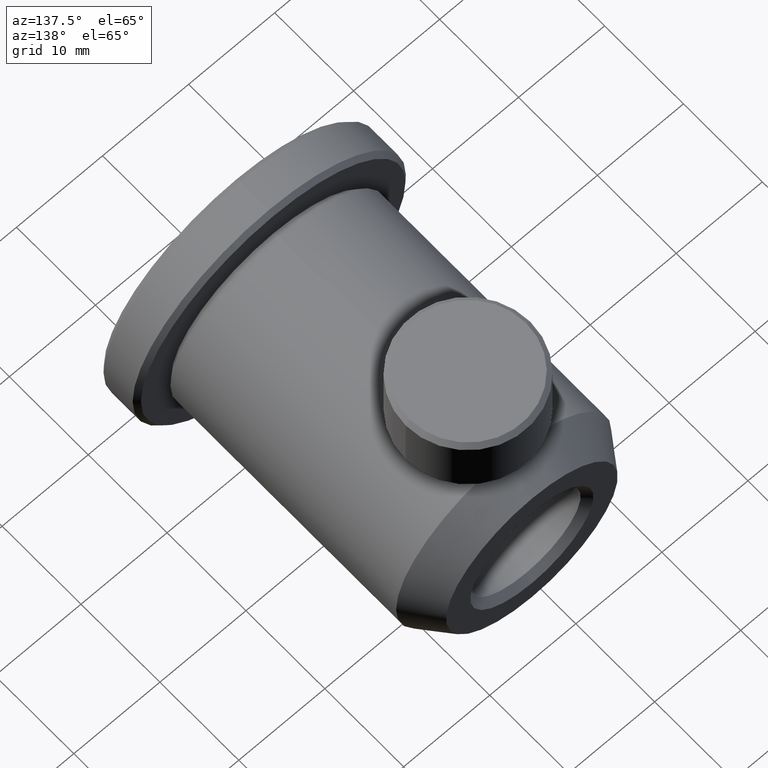
[diagram: clean part render]
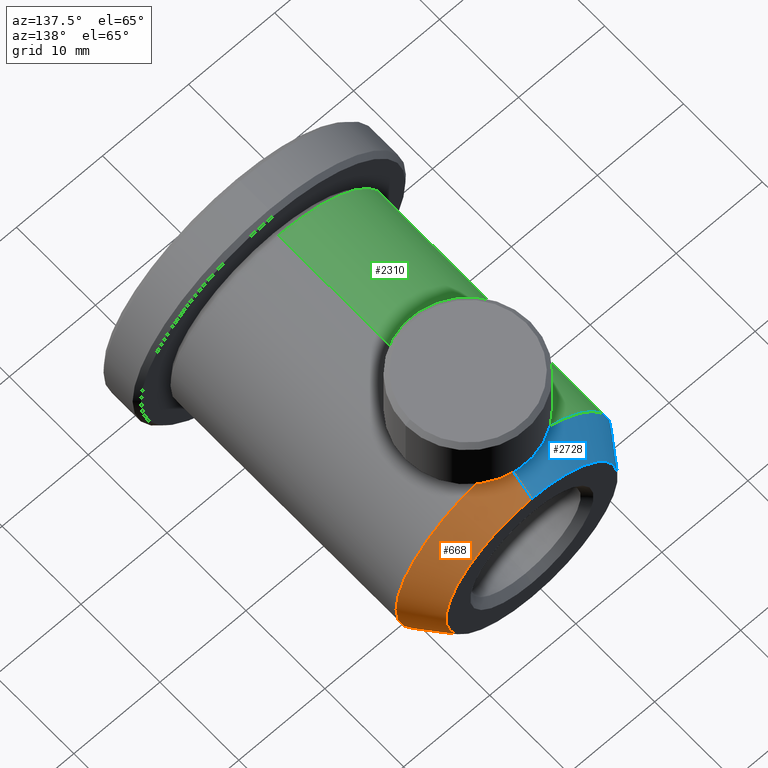
[diagram: same view with three faces highlighted in distinct colors, each labeled with its STEP entity id]
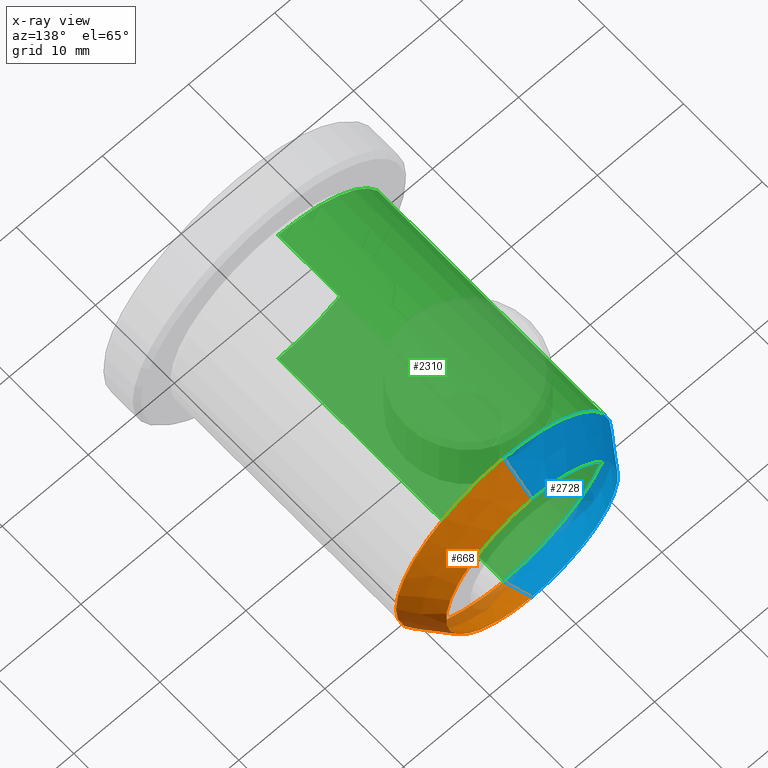
[diagram: x-ray of the same camera — body ghosted, the three highlighted faces saturated]
A machine part, auxiliary view with three faces highlighted in distinct colors.
The next image is the same camera in x-ray (body ghosted, the three faces saturated) — at least one of them is partly hidden behind the body in this view.
Their STEP definitions:

[orange] entity #668 — the highlighted conical surface has half-angle 35.304 deg.
#107 = EDGE_CURVE ( 'NONE', #1892, #2600, #1264, .T. ) ;
#384 = EDGE_CURVE ( 'NONE', #1728, #1892, #3466, .T. ) ;
#419 = CARTESIAN_POINT ( 'NONE',  ( -16.77690416192938400, 14.37733255234846500, -0.6606246024972641800 ) ) ;
#465 = DIRECTION ( 'NONE',  ( 7.077332711792863800E-017, -0.8161018684870594600, 0.5779080724924426900 ) ) ;
#481 = DIRECTION ( 'NONE',  ( 0.0000000000000000000, 0.0000000000000000000, 1.000000000000000000 ) ) ;
#499 = VERTEX_POINT ( 'NONE', #2483 ) ;
#668 = ADVANCED_FACE ( 'NONE', ( #1969 ), #1138, .T. ) ;
#898 = EDGE_LOOP ( 'NONE', ( #2555, #1310, #2309, #2918 ) ) ;
#1138 = CONICAL_SURFACE ( 'NONE', #3265, 12.50662460249726500, 0.6161630405470184300 ) ;
#1190 = LINE ( 'NONE', #2158, #2479 ) ;
#1205 = DIRECTION ( 'NONE',  ( 0.0000000000000000000, -1.000000000000000000, 0.0000000000000000000 ) ) ;
#1264 = LINE ( 'NONE', #2657, #3279 ) ;
#1310 = ORIENTED_EDGE ( 'NONE', *, *, #2709, .T. ) ;
#1313 = CARTESIAN_POINT ( 'NONE',  ( -16.77690416192938400, 17.95116843547334500, 11.84600000000000000 ) ) ;
#1522 = DIRECTION ( 'NONE',  ( -0.0000000000000000000, 1.000000000000000000, -0.0000000000000000000 ) ) ;
#1728 = VERTEX_POINT ( 'NONE', #2485 ) ;
#1892 = VERTEX_POINT ( 'NONE', #3002 ) ;
#1969 = FACE_OUTER_BOUND ( 'NONE', #898, .T. ) ;
#2157 = DIRECTION ( 'NONE',  ( -0.0000000000000000000, 1.000000000000000000, -0.0000000000000000000 ) ) ;
#2158 = CARTESIAN_POINT ( 'NONE',  ( -16.77690416192938400, 14.37733255234846500, 24.35262460249726500 ) ) ;
#2180 = EDGE_CURVE ( 'NONE', #499, #2600, #3513, .T. ) ;
#2309 = ORIENTED_EDGE ( 'NONE', *, *, #2180, .T. ) ;
#2479 = VECTOR ( 'NONE', #465, 1000.000000000000200 ) ;
#2481 = AXIS2_PLACEMENT_3D ( 'NONE', #2656, #1522, #3192 ) ;
#2483 = CARTESIAN_POINT ( 'NONE',  ( -16.77690416192938400, 14.37733255234846500, 24.35262460249726500 ) ) ;
#2485 = CARTESIAN_POINT ( 'NONE',  ( -16.77690416192938400, 17.95116843547334500, 21.82187606929037600 ) ) ;
#2555 = ORIENTED_EDGE ( 'NONE', *, *, #384, .F. ) ;
#2600 = VERTEX_POINT ( 'NONE', #419 ) ;
#2611 = CARTESIAN_POINT ( 'NONE',  ( -16.77690416192938400, 14.37733255234846500, 11.84600000000000000 ) ) ;
#2656 = CARTESIAN_POINT ( 'NONE',  ( -16.77690416192938400, 14.37733255234846500, 11.84600000000000000 ) ) ;
#2657 = CARTESIAN_POINT ( 'NONE',  ( -16.77690416192938400, 14.37733255234846500, -0.6606246024972641800 ) ) ;
#2709 = EDGE_CURVE ( 'NONE', #1728, #499, #1190, .T. ) ;
#2918 = ORIENTED_EDGE ( 'NONE', *, *, #107, .F. ) ;
#3002 = CARTESIAN_POINT ( 'NONE',  ( -16.77690416192938400, 17.95116843547334500, 1.870123930709623600 ) ) ;
#3174 = AXIS2_PLACEMENT_3D ( 'NONE', #1313, #2157, #481 ) ;
#3192 = DIRECTION ( 'NONE',  ( 0.0000000000000000000, 0.0000000000000000000, 1.000000000000000000 ) ) ;
#3265 = AXIS2_PLACEMENT_3D ( 'NONE', #2611, #1205, #3434 ) ;
#3279 = VECTOR ( 'NONE', #3463, 1000.000000000000200 ) ;
#3434 = DIRECTION ( 'NONE',  ( 0.0000000000000000000, 0.0000000000000000000, -1.000000000000000000 ) ) ;
#3463 = DIRECTION ( 'NONE',  ( 0.0000000000000000000, -0.8161018684870594600, -0.5779080724924426900 ) ) ;
#3466 = CIRCLE ( 'NONE', #3174, 9.975876069290375600 ) ;
#3513 = CIRCLE ( 'NONE', #2481, 12.50662460249726300 ) ;

[blue] entity #2728 — the highlighted conical surface has half-angle 35.304 deg.
#53 = CIRCLE ( 'NONE', #1052, 12.50662460249726300 ) ;
#107 = EDGE_CURVE ( 'NONE', #1892, #2600, #1264, .T. ) ;
#419 = CARTESIAN_POINT ( 'NONE',  ( -16.77690416192938400, 14.37733255234846500, -0.6606246024972641800 ) ) ;
#465 = DIRECTION ( 'NONE',  ( 7.077332711792863800E-017, -0.8161018684870594600, 0.5779080724924426900 ) ) ;
#499 = VERTEX_POINT ( 'NONE', #2483 ) ;
#509 = FACE_OUTER_BOUND ( 'NONE', #570, .T. ) ;
#570 = EDGE_LOOP ( 'NONE', ( #3136, #2110, #2712, #1275 ) ) ;
#846 = CIRCLE ( 'NONE', #3486, 9.975876069290375600 ) ;
#998 = DIRECTION ( 'NONE',  ( -0.0000000000000000000, 1.000000000000000000, -0.0000000000000000000 ) ) ;
#1052 = AXIS2_PLACEMENT_3D ( 'NONE', #3238, #998, #2947 ) ;
#1131 = DIRECTION ( 'NONE',  ( 0.0000000000000000000, 0.0000000000000000000, 1.000000000000000000 ) ) ;
#1190 = LINE ( 'NONE', #2158, #2479 ) ;
#1264 = LINE ( 'NONE', #2657, #3279 ) ;
#1275 = ORIENTED_EDGE ( 'NONE', *, *, #3235, .T. ) ;
#1481 = CARTESIAN_POINT ( 'NONE',  ( -16.77690416192938400, 17.95116843547334500, 11.84600000000000000 ) ) ;
#1577 = DIRECTION ( 'NONE',  ( 0.0000000000000000000, -1.000000000000000000, 0.0000000000000000000 ) ) ;
#1728 = VERTEX_POINT ( 'NONE', #2485 ) ;
#1788 = EDGE_CURVE ( 'NONE', #1892, #1728, #846, .T. ) ;
#1837 = AXIS2_PLACEMENT_3D ( 'NONE', #2954, #1577, #1881 ) ;
#1881 = DIRECTION ( 'NONE',  ( 0.0000000000000000000, 0.0000000000000000000, -1.000000000000000000 ) ) ;
#1892 = VERTEX_POINT ( 'NONE', #3002 ) ;
#2110 = ORIENTED_EDGE ( 'NONE', *, *, #1788, .F. ) ;
#2158 = CARTESIAN_POINT ( 'NONE',  ( -16.77690416192938400, 14.37733255234846500, 24.35262460249726500 ) ) ;
#2302 = DIRECTION ( 'NONE',  ( -0.0000000000000000000, 1.000000000000000000, -0.0000000000000000000 ) ) ;
#2479 = VECTOR ( 'NONE', #465, 1000.000000000000200 ) ;
#2483 = CARTESIAN_POINT ( 'NONE',  ( -16.77690416192938400, 14.37733255234846500, 24.35262460249726500 ) ) ;
#2485 = CARTESIAN_POINT ( 'NONE',  ( -16.77690416192938400, 17.95116843547334500, 21.82187606929037600 ) ) ;
#2600 = VERTEX_POINT ( 'NONE', #419 ) ;
#2657 = CARTESIAN_POINT ( 'NONE',  ( -16.77690416192938400, 14.37733255234846500, -0.6606246024972641800 ) ) ;
#2709 = EDGE_CURVE ( 'NONE', #1728, #499, #1190, .T. ) ;
#2712 = ORIENTED_EDGE ( 'NONE', *, *, #107, .T. ) ;
#2728 = ADVANCED_FACE ( 'NONE', ( #509 ), #3215, .T. ) ;
#2947 = DIRECTION ( 'NONE',  ( 0.0000000000000000000, 0.0000000000000000000, 1.000000000000000000 ) ) ;
#2954 = CARTESIAN_POINT ( 'NONE',  ( -16.77690416192938400, 14.37733255234846500, 11.84600000000000000 ) ) ;
#3002 = CARTESIAN_POINT ( 'NONE',  ( -16.77690416192938400, 17.95116843547334500, 1.870123930709623600 ) ) ;
#3136 = ORIENTED_EDGE ( 'NONE', *, *, #2709, .F. ) ;
#3215 = CONICAL_SURFACE ( 'NONE', #1837, 12.50662460249726500, 0.6161630405470184300 ) ;
#3235 = EDGE_CURVE ( 'NONE', #2600, #499, #53, .T. ) ;
#3238 = CARTESIAN_POINT ( 'NONE',  ( -16.77690416192938400, 14.37733255234846500, 11.84600000000000000 ) ) ;
#3279 = VECTOR ( 'NONE', #3463, 1000.000000000000200 ) ;
#3463 = DIRECTION ( 'NONE',  ( 0.0000000000000000000, -0.8161018684870594600, -0.5779080724924426900 ) ) ;
#3486 = AXIS2_PLACEMENT_3D ( 'NONE', #1481, #2302, #1131 ) ;

[green] entity #2310 — the highlighted cylindrical surface (partial cylindrical patch) has radius 12.5066 mm, axis along (-0, 1, -0).
#24 = CARTESIAN_POINT ( 'NONE',  ( -19.37900808545461500, 11.35685776725908800, 24.07943613021266300 ) ) ;
#31 = CARTESIAN_POINT ( 'NONE',  ( -16.77690416192938400, -14.21383156452665000, 11.84600000000000000 ) ) ;
#51 = VECTOR ( 'NONE', #167, 1000.000000000000000 ) ;
#53 = CIRCLE ( 'NONE', #1052, 12.50662460249726300 ) ;
#81 = VERTEX_POINT ( 'NONE', #3198 ) ;
#167 = DIRECTION ( 'NONE',  ( -0.0000000000000000000, 1.000000000000000000, -0.0000000000000000000 ) ) ;
#266 = CARTESIAN_POINT ( 'NONE',  ( -17.55854165358713100, 6.948081866018425100, 24.32967568799593400 ) ) ;
#279 = CARTESIAN_POINT ( 'NONE',  ( -19.62271400234653400, 8.881769656622104500, 24.02479129204621000 ) ) ;
#302 = DIRECTION ( 'NONE',  ( 0.0000000000000000000, 0.0000000000000000000, 1.000000000000000000 ) ) ;
#340 = CARTESIAN_POINT ( 'NONE',  ( -19.68040356499901800, 10.63092740669026000, 24.01098696126851800 ) ) ;
#415 = AXIS2_PLACEMENT_3D ( 'NONE', #31, #1983, #302 ) ;
#419 = CARTESIAN_POINT ( 'NONE',  ( -16.77690416192938400, 14.37733255234846500, -0.6606246024972641800 ) ) ;
#499 = VERTEX_POINT ( 'NONE', #2483 ) ;
#528 = CARTESIAN_POINT ( 'NONE',  ( -19.68090497296532200, 9.073155061120720800, 24.01086710568907600 ) ) ;
#529 = CARTESIAN_POINT ( 'NONE',  ( -18.76151030040660900, 7.593019555026637900, 24.19494699530568100 ) ) ;
#561 = CARTESIAN_POINT ( 'NONE',  ( -19.47250223190258800, 8.519958953306792500, 24.05891701552877400 ) ) ;
#564 = CARTESIAN_POINT ( 'NONE',  ( -18.28296891610102300, 12.45312902019729300, 24.26270025189487000 ) ) ;
#594 = ORIENTED_EDGE ( 'NONE', *, *, #3411, .F. ) ;
#614 = EDGE_CURVE ( 'NONE', #1480, #3089, #1042, .T. ) ;
#676 = DIRECTION ( 'NONE',  ( 0.0000000000000000000, 0.0000000000000000000, 1.000000000000000000 ) ) ;
#679 = EDGE_CURVE ( 'NONE', #1480, #2600, #3214, .T. ) ;
#749 = ORIENTED_EDGE ( 'NONE', *, *, #934, .T. ) ;
#762 = CARTESIAN_POINT ( 'NONE',  ( -19.77690416192938000, 9.653309429130514400, 23.98748503881588000 ) ) ;
#804 = CARTESIAN_POINT ( 'NONE',  ( -16.97580500592116000, 6.851168435473342200, 24.35262460249727200 ) ) ;
#818 = CARTESIAN_POINT ( 'NONE',  ( -19.03670591464784000, 7.868444569284528200, 24.14756288672952400 ) ) ;
#934 = EDGE_CURVE ( 'NONE', #3171, #499, #2135, .T. ) ;
#998 = DIRECTION ( 'NONE',  ( -0.0000000000000000000, 1.000000000000000000, -0.0000000000000000000 ) ) ;
#1000 = VECTOR ( 'NONE', #1550, 1000.000000000000000 ) ;
#1042 = CIRCLE ( 'NONE', #415, 12.50662460249726300 ) ;
#1050 = ORIENTED_EDGE ( 'NONE', *, *, #3235, .F. ) ;
#1052 = AXIS2_PLACEMENT_3D ( 'NONE', #3238, #998, #2947 ) ;
#1058 = EDGE_CURVE ( 'NONE', #3089, #81, #1441, .T. ) ;
#1120 = CARTESIAN_POINT ( 'NONE',  ( -18.10752271703766400, 12.54703946751284100, 24.28296246816885400 ) ) ;
#1147 = CARTESIAN_POINT ( 'NONE',  ( -19.77690416192938400, 9.851168435473340400, 23.98748503881588000 ) ) ;
#1170 = CARTESIAN_POINT ( 'NONE',  ( -16.77690416192938400, -14.21383156452665000, -0.6606246024972641800 ) ) ;
#1248 = DIRECTION ( 'NONE',  ( -0.0000000000000000000, 1.000000000000000000, -0.0000000000000000000 ) ) ;
#1385 = CARTESIAN_POINT ( 'NONE',  ( -18.60965368478341700, 7.467936634371733700, 24.21870940639399800 ) ) ;
#1398 = CARTESIAN_POINT ( 'NONE',  ( -16.77690416192938400, 6.851168435473341300, 24.35262460249726500 ) ) ;
#1421 = CARTESIAN_POINT ( 'NONE',  ( -17.17189442521423700, 6.870757140026907600, 24.34788379978537500 ) ) ;
#1423 = CARTESIAN_POINT ( 'NONE',  ( -19.77690416192938400, 10.04911586751565400, 23.98748503881588000 ) ) ;
#1441 = LINE ( 'NONE', #2370, #51 ) ;
#1449 = CARTESIAN_POINT ( 'NONE',  ( -18.60876713593070500, 12.23501154539021500, 24.21883129415605400 ) ) ;
#1463 = CARTESIAN_POINT ( 'NONE',  ( -19.77690416192938400, 9.851168435473340400, 23.98748503881588000 ) ) ;
#1465 = CYLINDRICAL_SURFACE ( 'NONE', #3284, 12.50662460249726300 ) ;
#1480 = VERTEX_POINT ( 'NONE', #1170 ) ;
#1550 = DIRECTION ( 'NONE',  ( -0.0000000000000000000, 1.000000000000000000, -0.0000000000000000000 ) ) ;
#1772 = CARTESIAN_POINT ( 'NONE',  ( -16.77690416192938400, 10.85402768764679000, 24.35262460249726500 ) ) ;
#1811 = DIRECTION ( 'NONE',  ( -0.0000000000000000000, 1.000000000000000000, -0.0000000000000000000 ) ) ;
#1868 = CARTESIAN_POINT ( 'NONE',  ( -19.77690416192938400, 9.851168435473340400, 23.98748503881588000 ) ) ;
#1941 = CARTESIAN_POINT ( 'NONE',  ( -18.11038249910439300, 7.156721756716213400, 24.28265296870212000 ) ) ;
#1964 = EDGE_CURVE ( 'NONE', #2991, #81, #2554, .T. ) ;
#1966 = CARTESIAN_POINT ( 'NONE',  ( -17.74947562012414800, 7.006469481438795600, 24.31606841594492600 ) ) ;
#1983 = DIRECTION ( 'NONE',  ( -0.0000000000000000000, 1.000000000000000000, -0.0000000000000000000 ) ) ;
#1986 = CARTESIAN_POINT ( 'NONE',  ( -19.62301333337362400, 10.82002378226781200, 24.02472588128821600 ) ) ;
#2005 = B_SPLINE_CURVE_WITH_KNOTS ( 'NONE', 3,
 ( #2502, #3074, #3088, #1120, #564, #1449, #3328, #2263, #3338, #24, #2795, #1986, #340, #3364, #1423, #1463 ),
 .UNSPECIFIED., .F., .F.,
 ( 4, 2, 2, 2, 2, 2, 2, 4 ),
 ( 0.009413793749264619300, 0.01059046571910723800, 0.01117880170402854100, 0.01176713768894984400, 0.01235547367387114700, 0.01294380965879245000, 0.01353214564371375300, 0.01412048162863505600 ),
 .UNSPECIFIED. ) ;
#2039 = ORIENTED_EDGE ( 'NONE', *, *, #679, .F. ) ;
#2135 = LINE ( 'NONE', #1772, #2473 ) ;
#2146 = CARTESIAN_POINT ( 'NONE',  ( -16.77690416192938400, 12.85116843547333900, 24.35262460249726900 ) ) ;
#2205 = CARTESIAN_POINT ( 'NONE',  ( -19.38045616901423400, 8.347784904012332400, 24.07913532737180200 ) ) ;
#2247 = CARTESIAN_POINT ( 'NONE',  ( -19.16200838846354100, 8.020888969153347100, 24.12359588925928500 ) ) ;
#2263 = CARTESIAN_POINT ( 'NONE',  ( -19.03601142714200700, 11.83477607239777500, 24.14769918229095300 ) ) ;
#2310 = ADVANCED_FACE ( 'NONE', ( #2363 ), #1465, .T. ) ;
#2339 = CARTESIAN_POINT ( 'NONE',  ( -16.77690416192938400, -14.21383156452665000, 24.35262460249726500 ) ) ;
#2363 = FACE_OUTER_BOUND ( 'NONE', #3389, .T. ) ;
#2370 = CARTESIAN_POINT ( 'NONE',  ( -16.77690416192938400, 10.85402768764679000, 24.35262460249726500 ) ) ;
#2473 = VECTOR ( 'NONE', #1248, 1000.000000000000000 ) ;
#2483 = CARTESIAN_POINT ( 'NONE',  ( -16.77690416192938400, 14.37733255234846500, 24.35262460249726500 ) ) ;
#2502 = CARTESIAN_POINT ( 'NONE',  ( -16.77690416192938400, 12.85116843547333900, 24.35262460249726900 ) ) ;
#2529 = CARTESIAN_POINT ( 'NONE',  ( -18.28245620805316200, 7.248846843564265900, 24.26277179886158900 ) ) ;
#2554 = B_SPLINE_CURVE_WITH_KNOTS ( 'NONE', 3,
 ( #1868, #762, #3567, #528, #279, #561, #2205, #2247, #818, #529, #1385, #2529, #1941, #1966, #266, #1421, #804, #1398 ),
 .UNSPECIFIED., .F., .F.,
 ( 4, 2, 2, 2, 2, 2, 2, 2, 4 ),
 ( 0.01412048162863505600, 0.01470855479619892500, 0.01529662796376279500, 0.01588470113132666600, 0.01647277429889053300, 0.01706084746645440300, 0.01764892063401827400, 0.01823699380158214100, 0.01882506696914601100 ),
 .UNSPECIFIED. ) ;
#2600 = VERTEX_POINT ( 'NONE', #419 ) ;
#2627 = CARTESIAN_POINT ( 'NONE',  ( -16.77690416192938400, 10.85402768764679000, -0.6606246024972641800 ) ) ;
#2795 = CARTESIAN_POINT ( 'NONE',  ( -19.47140754261738800, 11.18483617155013100, 24.05916310538756200 ) ) ;
#2929 = ORIENTED_EDGE ( 'NONE', *, *, #1964, .F. ) ;
#2947 = DIRECTION ( 'NONE',  ( 0.0000000000000000000, 0.0000000000000000000, 1.000000000000000000 ) ) ;
#2991 = VERTEX_POINT ( 'NONE', #1147 ) ;
#3074 = CARTESIAN_POINT ( 'NONE',  ( -17.16931432334047600, 12.85116843547333900, 24.35262460249726900 ) ) ;
#3088 = CARTESIAN_POINT ( 'NONE',  ( -17.56549406626696800, 12.77198876632723300, 24.33301220527804200 ) ) ;
#3089 = VERTEX_POINT ( 'NONE', #2339 ) ;
#3162 = CARTESIAN_POINT ( 'NONE',  ( -16.77690416192938400, 10.85402768764679000, 11.84600000000000000 ) ) ;
#3171 = VERTEX_POINT ( 'NONE', #2146 ) ;
#3198 = CARTESIAN_POINT ( 'NONE',  ( -16.77690416192938400, 6.851168435473341300, 24.35262460249726500 ) ) ;
#3214 = LINE ( 'NONE', #2627, #1000 ) ;
#3235 = EDGE_CURVE ( 'NONE', #2600, #499, #53, .T. ) ;
#3238 = CARTESIAN_POINT ( 'NONE',  ( -16.77690416192938400, 14.37733255234846500, 11.84600000000000000 ) ) ;
#3284 = AXIS2_PLACEMENT_3D ( 'NONE', #3162, #1811, #676 ) ;
#3315 = ORIENTED_EDGE ( 'NONE', *, *, #614, .T. ) ;
#3328 = CARTESIAN_POINT ( 'NONE',  ( -18.75929689457834500, 12.11134186831914100, 24.19531121402545900 ) ) ;
#3338 = CARTESIAN_POINT ( 'NONE',  ( -19.16213383256856800, 11.68112051434898300, 24.12356424536725500 ) ) ;
#3364 = CARTESIAN_POINT ( 'NONE',  ( -19.75712177482019500, 10.24694086583504000, 23.99242002942735800 ) ) ;
#3384 = ORIENTED_EDGE ( 'NONE', *, *, #1058, .T. ) ;
#3389 = EDGE_LOOP ( 'NONE', ( #2039, #3315, #3384, #2929, #594, #749, #1050 ) ) ;
#3411 = EDGE_CURVE ( 'NONE', #3171, #2991, #2005, .T. ) ;
#3567 = CARTESIAN_POINT ( 'NONE',  ( -19.75752042615206200, 9.458164355825077900, 23.99232203982031900 ) ) ;